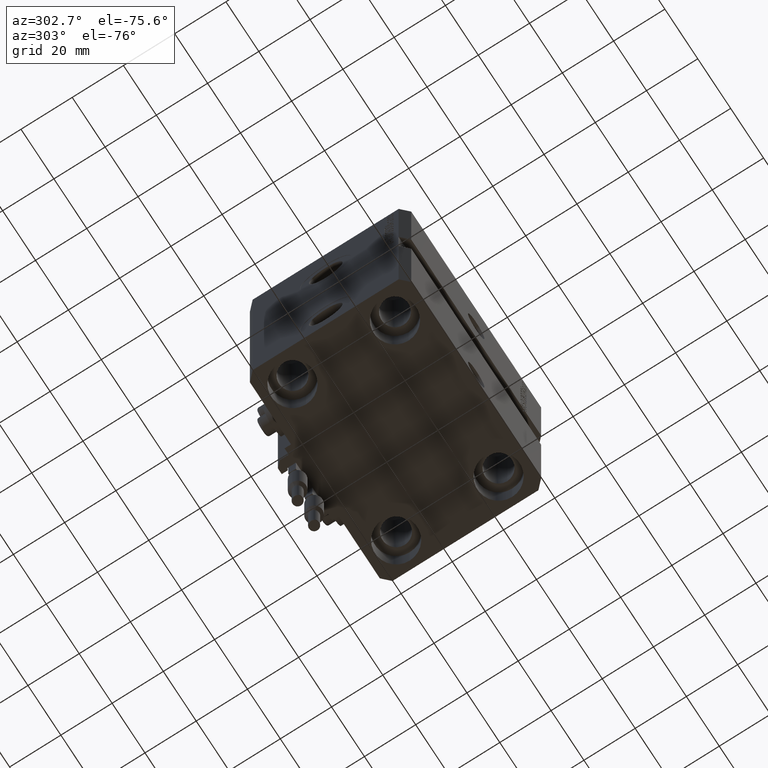
[diagram: clean part render]
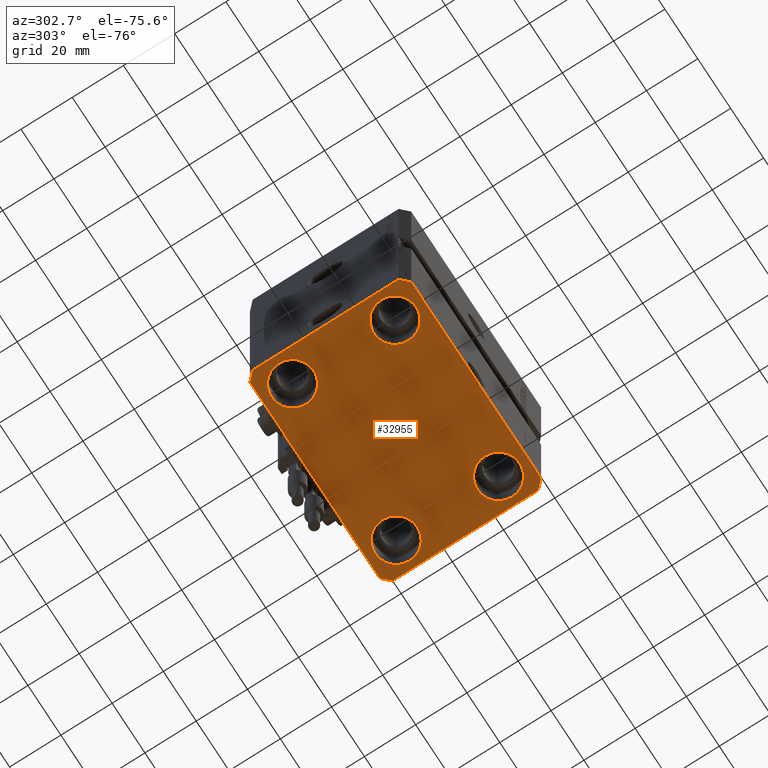
[diagram: same view with one face highlighted and labeled with its STEP entity id]
A machine part, auxiliary view. The second image highlights one B-rep face of the part: STEP entity #32955.
In plain terms, the highlighted planar face has unit normal (0, 0, 1).
Its self-contained STEP definition (entity closure, byte-faithful):
#292 = DIRECTION ( 'NONE',  ( 1.000000000000000000, 0.000000000000000000, 0.000000000000000000 ) ) ;
#358 = EDGE_LOOP ( 'NONE', ( #28159, #6707 ) ) ;
#810 = EDGE_CURVE ( 'NONE', #18507, #20060, #4143, .T. ) ;
#1797 = CARTESIAN_POINT ( 'NONE',  ( 23.25000000000000355, -20.00000000000000000, -93.00000000000000000 ) ) ;
#1938 = CARTESIAN_POINT ( 'NONE',  ( 39.74999999999999289, -20.00000000000000000, -93.00000000000000000 ) ) ;
#2001 = VERTEX_POINT ( 'NONE', #22332 ) ;
#2016 = CARTESIAN_POINT ( 'NONE',  ( 31.50000000000000000, 20.00000000000001066, -93.00000000000000000 ) ) ;
#2434 = AXIS2_PLACEMENT_3D ( 'NONE', #38018, #13688, #6634 ) ;
#2660 = VERTEX_POINT ( 'NONE', #29725 ) ;
#2702 = EDGE_CURVE ( 'NONE', #24890, #38991, #48162, .T. ) ;
#2726 = EDGE_CURVE ( 'NONE', #36759, #9806, #9614, .T. ) ;
#3109 = CARTESIAN_POINT ( 'NONE',  ( -42.50000000000000000, 28.50000000000000000, -93.00000000000000000 ) ) ;
#3312 = DIRECTION ( 'NONE',  ( 1.000000000000000000, 0.000000000000000000, 0.000000000000000000 ) ) ;
#3531 = EDGE_CURVE ( 'NONE', #40333, #10211, #19146, .T. ) ;
#3725 = CIRCLE ( 'NONE', #39607, 8.250000000000000000 ) ;
#4143 = LINE ( 'NONE', #20344, #48030 ) ;
#4326 = VECTOR ( 'NONE', #29413, 1000.000000000000000 ) ;
#4358 = AXIS2_PLACEMENT_3D ( 'NONE', #20640, #48654, #49166 ) ;
#5561 = ORIENTED_EDGE ( 'NONE', *, *, #31686, .F. ) ;
#5842 = EDGE_LOOP ( 'NONE', ( #31003, #39460 ) ) ;
#5930 = DIRECTION ( 'NONE',  ( 0.7071067811865483499, 0.7071067811865466846, 0.000000000000000000 ) ) ;
#6563 = VERTEX_POINT ( 'NONE', #40033 ) ;
#6634 = DIRECTION ( 'NONE',  ( 1.000000000000000000, 0.000000000000000000, 0.000000000000000000 ) ) ;
#6707 = ORIENTED_EDGE ( 'NONE', *, *, #21160, .T. ) ;
#7147 = ORIENTED_EDGE ( 'NONE', *, *, #41124, .F. ) ;
#7263 = VERTEX_POINT ( 'NONE', #1797 ) ;
#8307 = VERTEX_POINT ( 'NONE', #29957 ) ;
#8547 = CARTESIAN_POINT ( 'NONE',  ( -39.50000000000000711, -31.50000000000000000, -93.00000000000000000 ) ) ;
#8640 = DIRECTION ( 'NONE',  ( 1.000000000000000000, 0.000000000000000000, 0.000000000000000000 ) ) ;
#8648 = DIRECTION ( 'NONE',  ( -0.000000000000000000, -0.000000000000000000, 1.000000000000000000 ) ) ;
#9614 = CIRCLE ( 'NONE', #9657, 8.249999999999992895 ) ;
#9657 = AXIS2_PLACEMENT_3D ( 'NONE', #2016, #36369, #8640 ) ;
#9806 = VERTEX_POINT ( 'NONE', #25405 ) ;
#9929 = FACE_BOUND ( 'NONE', #5842, .T. ) ;
#10211 = VERTEX_POINT ( 'NONE', #21119 ) ;
#10528 = ORIENTED_EDGE ( 'NONE', *, *, #3531, .F. ) ;
#10768 = CIRCLE ( 'NONE', #20734, 8.249999999999992895 ) ;
#10974 = ORIENTED_EDGE ( 'NONE', *, *, #810, .F. ) ;
#11516 = DIRECTION ( 'NONE',  ( 1.000000000000000000, 0.000000000000000000, 0.000000000000000000 ) ) ;
#11640 = ORIENTED_EDGE ( 'NONE', *, *, #2702, .F. ) ;
#11659 = CARTESIAN_POINT ( 'NONE',  ( -23.25000000000000000, -20.00000000000000000, -93.00000000000000000 ) ) ;
#13688 = DIRECTION ( 'NONE',  ( -0.000000000000000000, -0.000000000000000000, 1.000000000000000000 ) ) ;
#14108 = FACE_BOUND ( 'NONE', #37972, .T. ) ;
#14550 = VECTOR ( 'NONE', #28002, 1000.000000000000000 ) ;
#15084 = DIRECTION ( 'NONE',  ( -0.000000000000000000, -0.000000000000000000, 1.000000000000000000 ) ) ;
#15652 = EDGE_CURVE ( 'NONE', #42834, #8307, #18827, .T. ) ;
#15903 = ORIENTED_EDGE ( 'NONE', *, *, #50021, .T. ) ;
#16206 = CARTESIAN_POINT ( 'NONE',  ( 39.74999999999999289, 20.00000000000001066, -93.00000000000000000 ) ) ;
#16616 = VECTOR ( 'NONE', #45308, 1000.000000000000000 ) ;
#16896 = CIRCLE ( 'NONE', #4358, 8.250000000000000000 ) ;
#18031 = DIRECTION ( 'NONE',  ( 1.000000000000000000, 0.000000000000000000, -0.000000000000000000 ) ) ;
#18507 = VERTEX_POINT ( 'NONE', #37012 ) ;
#18510 = DIRECTION ( 'NONE',  ( 1.000000000000000000, 0.000000000000000000, 0.000000000000000000 ) ) ;
#18713 = EDGE_LOOP ( 'NONE', ( #5561, #46276, #7147, #11640, #49177, #10974, #33900, #10528 ) ) ;
#18827 = LINE ( 'NONE', #30318, #25750 ) ;
#18854 = CARTESIAN_POINT ( 'NONE',  ( 39.50000000000000711, -31.50000000000000000, -93.00000000000000000 ) ) ;
#19062 = EDGE_CURVE ( 'NONE', #9806, #36759, #38439, .T. ) ;
#19146 = LINE ( 'NONE', #31929, #14550 ) ;
#19342 = AXIS2_PLACEMENT_3D ( 'NONE', #48429, #8648, #292 ) ;
#19558 = DIRECTION ( 'NONE',  ( 1.000000000000000000, 0.000000000000000000, 0.000000000000000000 ) ) ;
#20060 = VERTEX_POINT ( 'NONE', #8547 ) ;
#20344 = CARTESIAN_POINT ( 'NONE',  ( -42.50000000000000000, -28.50000000000000000, -93.00000000000000000 ) ) ;
#20640 = CARTESIAN_POINT ( 'NONE',  ( -31.50000000000000000, 20.00000000000000000, -93.00000000000000000 ) ) ;
#20734 = AXIS2_PLACEMENT_3D ( 'NONE', #47562, #31570, #19558 ) ;
#21119 = CARTESIAN_POINT ( 'NONE',  ( -42.50000000000000000, 28.50000000000000000, -93.00000000000000000 ) ) ;
#21160 = EDGE_CURVE ( 'NONE', #2001, #2660, #16896, .T. ) ;
#21435 = PLANE ( 'NONE',  #36942 ) ;
#21645 = EDGE_CURVE ( 'NONE', #40099, #7263, #10768, .T. ) ;
#22332 = CARTESIAN_POINT ( 'NONE',  ( -23.25000000000000000, 20.00000000000000000, -93.00000000000000000 ) ) ;
#23518 = CIRCLE ( 'NONE', #19342, 8.249999999999992895 ) ;
#23725 = CARTESIAN_POINT ( 'NONE',  ( -39.50000000000000711, -31.50000000000000000, -93.00000000000000000 ) ) ;
#24329 = CARTESIAN_POINT ( 'NONE',  ( 39.50000000000000711, -31.50000000000000000, -93.00000000000000000 ) ) ;
#24521 = ORIENTED_EDGE ( 'NONE', *, *, #2726, .T. ) ;
#24890 = VERTEX_POINT ( 'NONE', #18854 ) ;
#25405 = CARTESIAN_POINT ( 'NONE',  ( 23.25000000000000355, 20.00000000000001066, -93.00000000000000000 ) ) ;
#25471 = EDGE_CURVE ( 'NONE', #20060, #24890, #51757, .T. ) ;
#25750 = VECTOR ( 'NONE', #47345, 1000.000000000000114 ) ;
#26392 = FACE_BOUND ( 'NONE', #358, .T. ) ;
#26718 = CARTESIAN_POINT ( 'NONE',  ( 42.50000000000051870, 28.49999999999995381, -93.00000000000000000 ) ) ;
#27385 = CARTESIAN_POINT ( 'NONE',  ( 31.50000000000000000, 20.00000000000001066, -93.00000000000000000 ) ) ;
#28002 = DIRECTION ( 'NONE',  ( -0.7071067811865471286, -0.7071067811865479058, 0.000000000000000000 ) ) ;
#28159 = ORIENTED_EDGE ( 'NONE', *, *, #36828, .T. ) ;
#28758 = VECTOR ( 'NONE', #33172, 1000.000000000000000 ) ;
#29282 = FACE_OUTER_BOUND ( 'NONE', #18713, .T. ) ;
#29413 = DIRECTION ( 'NONE',  ( -1.000000000000000000, 0.000000000000000000, 0.000000000000000000 ) ) ;
#29725 = CARTESIAN_POINT ( 'NONE',  ( -39.75000000000000000, 20.00000000000000000, -93.00000000000000000 ) ) ;
#29957 = CARTESIAN_POINT ( 'NONE',  ( 39.50000000000056843, 31.50000000000000000, -93.00000000000000000 ) ) ;
#29978 = CIRCLE ( 'NONE', #2434, 8.250000000000000000 ) ;
#30054 = FACE_BOUND ( 'NONE', #44157, .T. ) ;
#30287 = ORIENTED_EDGE ( 'NONE', *, *, #46429, .T. ) ;
#30318 = CARTESIAN_POINT ( 'NONE',  ( 42.50000000000051870, 28.49999999999995381, -93.00000000000000000 ) ) ;
#31003 = ORIENTED_EDGE ( 'NONE', *, *, #31372, .T. ) ;
#31300 = DIRECTION ( 'NONE',  ( -0.000000000000000000, -0.000000000000000000, 1.000000000000000000 ) ) ;
#31372 = EDGE_CURVE ( 'NONE', #7263, #40099, #23518, .T. ) ;
#31570 = DIRECTION ( 'NONE',  ( -0.000000000000000000, -0.000000000000000000, 1.000000000000000000 ) ) ;
#31686 = EDGE_CURVE ( 'NONE', #8307, #40333, #33597, .T. ) ;
#31929 = CARTESIAN_POINT ( 'NONE',  ( -39.50000000000000711, 31.50000000000000000, -93.00000000000000000 ) ) ;
#32955 = ADVANCED_FACE ( 'NONE', ( #30054, #9929, #14108, #26392, #29282 ), #21435, .F. ) ;
#33172 = DIRECTION ( 'NONE',  ( 8.886653596232072440E-15, 1.000000000000000000, 0.000000000000000000 ) ) ;
#33597 = LINE ( 'NONE', #45394, #4326 ) ;
#33900 = ORIENTED_EDGE ( 'NONE', *, *, #50324, .F. ) ;
#34055 = AXIS2_PLACEMENT_3D ( 'NONE', #50946, #15084, #3312 ) ;
#35062 = CARTESIAN_POINT ( 'NONE',  ( -31.50000000000000000, 20.00000000000000000, -93.00000000000000000 ) ) ;
#35319 = DIRECTION ( 'NONE',  ( -0.000000000000000000, -0.000000000000000000, 1.000000000000000000 ) ) ;
#36369 = DIRECTION ( 'NONE',  ( -0.000000000000000000, -0.000000000000000000, 1.000000000000000000 ) ) ;
#36759 = VERTEX_POINT ( 'NONE', #16206 ) ;
#36828 = EDGE_CURVE ( 'NONE', #2660, #2001, #3725, .T. ) ;
#36942 = AXIS2_PLACEMENT_3D ( 'NONE', #49187, #37660, #18031 ) ;
#37012 = CARTESIAN_POINT ( 'NONE',  ( -42.50000000000000000, -28.50000000000000000, -93.00000000000000000 ) ) ;
#37362 = CARTESIAN_POINT ( 'NONE',  ( 42.50000000000000711, -28.50000000000000355, -93.00000000000000000 ) ) ;
#37660 = DIRECTION ( 'NONE',  ( 0.000000000000000000, 0.000000000000000000, 1.000000000000000000 ) ) ;
#37972 = EDGE_LOOP ( 'NONE', ( #39053, #24521 ) ) ;
#38018 = CARTESIAN_POINT ( 'NONE',  ( -31.50000000000000000, -20.00000000000000000, -93.00000000000000000 ) ) ;
#38439 = CIRCLE ( 'NONE', #46827, 8.249999999999992895 ) ;
#38991 = VERTEX_POINT ( 'NONE', #40200 ) ;
#39053 = ORIENTED_EDGE ( 'NONE', *, *, #19062, .T. ) ;
#39460 = ORIENTED_EDGE ( 'NONE', *, *, #21645, .T. ) ;
#39607 = AXIS2_PLACEMENT_3D ( 'NONE', #35062, #35319, #11516 ) ;
#40033 = CARTESIAN_POINT ( 'NONE',  ( -39.75000000000000000, -20.00000000000000000, -93.00000000000000000 ) ) ;
#40099 = VERTEX_POINT ( 'NONE', #1938 ) ;
#40200 = CARTESIAN_POINT ( 'NONE',  ( 42.50000000000000711, -28.50000000000000355, -93.00000000000000000 ) ) ;
#40333 = VERTEX_POINT ( 'NONE', #49769 ) ;
#41124 = EDGE_CURVE ( 'NONE', #38991, #42834, #43955, .T. ) ;
#42834 = VERTEX_POINT ( 'NONE', #26718 ) ;
#43955 = LINE ( 'NONE', #37362, #28758 ) ;
#44157 = EDGE_LOOP ( 'NONE', ( #30287, #15903 ) ) ;
#44396 = DIRECTION ( 'NONE',  ( 1.000000000000000000, 0.000000000000000000, 0.000000000000000000 ) ) ;
#44429 = VERTEX_POINT ( 'NONE', #11659 ) ;
#45026 = VECTOR ( 'NONE', #44396, 1000.000000000000000 ) ;
#45308 = DIRECTION ( 'NONE',  ( 0.000000000000000000, -1.000000000000000000, 0.000000000000000000 ) ) ;
#45394 = CARTESIAN_POINT ( 'NONE',  ( 39.50000000000056843, 31.50000000000000000, -93.00000000000000000 ) ) ;
#46276 = ORIENTED_EDGE ( 'NONE', *, *, #15652, .F. ) ;
#46429 = EDGE_CURVE ( 'NONE', #6563, #44429, #50790, .T. ) ;
#46827 = AXIS2_PLACEMENT_3D ( 'NONE', #27385, #31300, #18510 ) ;
#47345 = DIRECTION ( 'NONE',  ( -0.7071067811865356934, 0.7071067811865594521, 0.000000000000000000 ) ) ;
#47562 = CARTESIAN_POINT ( 'NONE',  ( 31.50000000000000000, -20.00000000000000000, -93.00000000000000000 ) ) ;
#48030 = VECTOR ( 'NONE', #51786, 1000.000000000000000 ) ;
#48162 = LINE ( 'NONE', #24329, #49753 ) ;
#48429 = CARTESIAN_POINT ( 'NONE',  ( 31.50000000000000000, -20.00000000000000000, -93.00000000000000000 ) ) ;
#48654 = DIRECTION ( 'NONE',  ( -0.000000000000000000, -0.000000000000000000, 1.000000000000000000 ) ) ;
#49166 = DIRECTION ( 'NONE',  ( 1.000000000000000000, 0.000000000000000000, 0.000000000000000000 ) ) ;
#49177 = ORIENTED_EDGE ( 'NONE', *, *, #25471, .F. ) ;
#49187 = CARTESIAN_POINT ( 'NONE',  ( 0.000000000000000000, 0.000000000000000000, -93.00000000000000000 ) ) ;
#49231 = LINE ( 'NONE', #3109, #16616 ) ;
#49753 = VECTOR ( 'NONE', #5930, 1000.000000000000000 ) ;
#49769 = CARTESIAN_POINT ( 'NONE',  ( -39.50000000000000711, 31.50000000000000000, -93.00000000000000000 ) ) ;
#50021 = EDGE_CURVE ( 'NONE', #44429, #6563, #29978, .T. ) ;
#50324 = EDGE_CURVE ( 'NONE', #10211, #18507, #49231, .T. ) ;
#50790 = CIRCLE ( 'NONE', #34055, 8.250000000000000000 ) ;
#50946 = CARTESIAN_POINT ( 'NONE',  ( -31.50000000000000000, -20.00000000000000000, -93.00000000000000000 ) ) ;
#51757 = LINE ( 'NONE', #23725, #45026 ) ;
#51786 = DIRECTION ( 'NONE',  ( 0.7071067811865471286, -0.7071067811865479058, 0.000000000000000000 ) ) ;